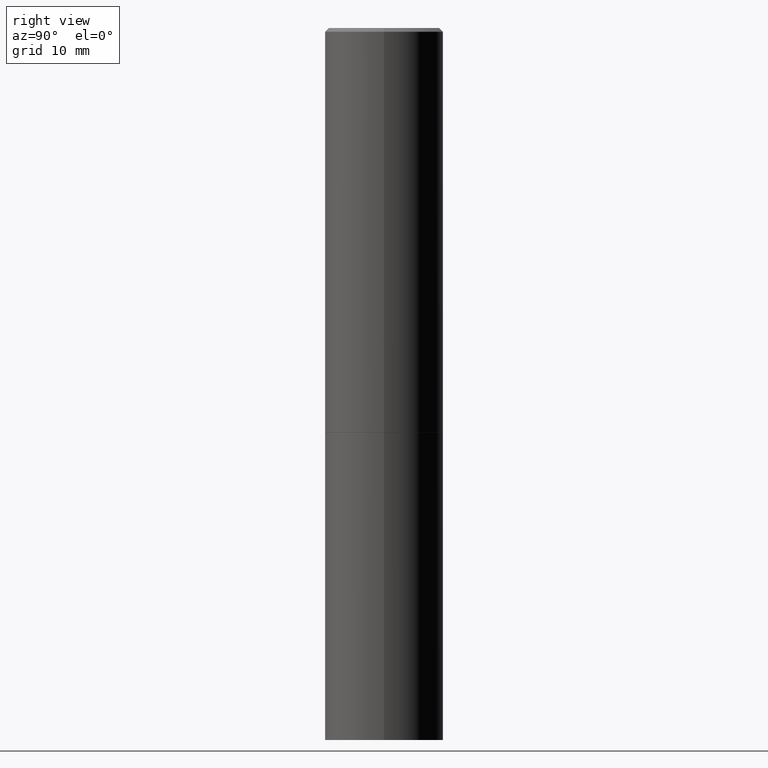
[diagram: clean part render]
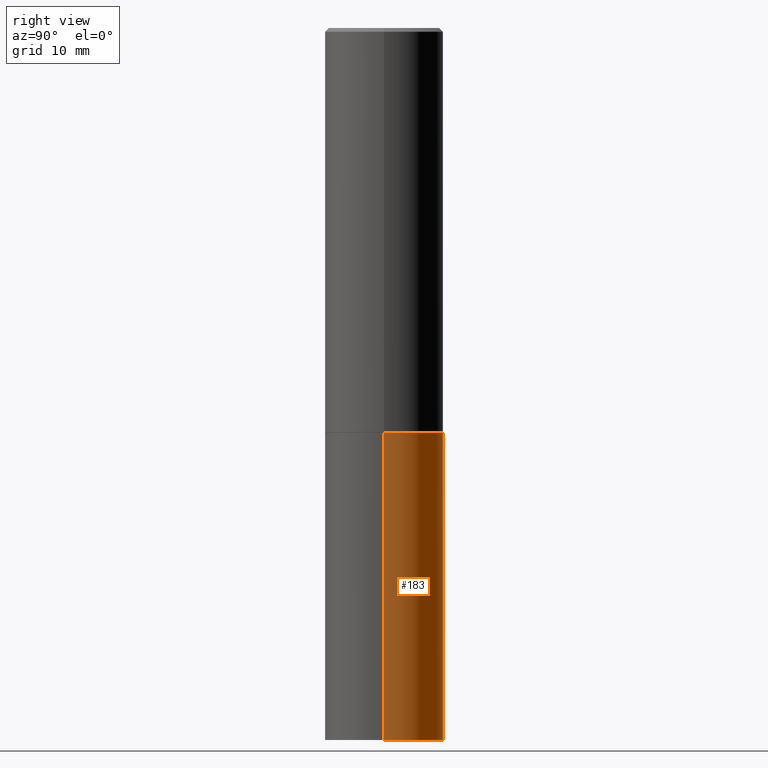
[diagram: same view with one face highlighted and labeled with its STEP entity id]
A machine part, right view. The second image highlights one B-rep face of the part: STEP entity #183.
In plain terms, the highlighted cylindrical surface (partial cylindrical patch) has radius 7.9375 mm, axis along (-0, 0, 1).
Its self-contained STEP definition (entity closure, byte-faithful):
#3 = CIRCLE ( 'NONE', #96, 0.3125000000000000000 ) ;
#6 = ORIENTED_EDGE ( 'NONE', *, *, #288, .F. ) ;
#13 = CARTESIAN_POINT ( 'NONE',  ( 0.3125000000000000000, -9.619031088512858584E-15, -2.129999999999999893 ) ) ;
#36 = EDGE_CURVE ( 'NONE', #205, #356, #92, .T. ) ;
#38 = AXIS2_PLACEMENT_3D ( 'NONE', #237, #105, #351 ) ;
#63 = DIRECTION ( 'NONE',  ( -2.445468806185136597E-29, 3.491481338843145583E-15, 1.000000000000000000 ) ) ;
#84 = CARTESIAN_POINT ( 'NONE',  ( -0.3125000000000000000, -8.044509086948536533E-15, -2.129999999999999893 ) ) ;
#85 = CYLINDRICAL_SURFACE ( 'NONE', #359, 0.3125000000000000000 ) ;
#92 = CIRCLE ( 'NONE', #38, 0.3125000000000000000 ) ;
#96 = AXIS2_PLACEMENT_3D ( 'NONE', #166, #334, #198 ) ;
#105 = DIRECTION ( 'NONE',  ( -2.445468806185136597E-29, 3.491481338843145583E-15, 1.000000000000000000 ) ) ;
#118 = FACE_OUTER_BOUND ( 'NONE', #322, .T. ) ;
#131 = VECTOR ( 'NONE', #257, 39.37007874015748143 ) ;
#136 = ORIENTED_EDGE ( 'NONE', *, *, #254, .F. ) ;
#138 = CARTESIAN_POINT ( 'NONE',  ( 0.3125000000000000000, -1.527523085743875734E-14, -3.750000000000000000 ) ) ;
#142 = VERTEX_POINT ( 'NONE', #13 ) ;
#148 = CARTESIAN_POINT ( 'NONE',  ( 0.000000000000000000, 0.000000000000000000, 0.000000000000000000 ) ) ;
#149 = CARTESIAN_POINT ( 'NONE',  ( -0.3125000000000000000, -8.044509086948536533E-15, -3.750000000000000000 ) ) ;
#160 = ORIENTED_EDGE ( 'NONE', *, *, #349, .T. ) ;
#166 = CARTESIAN_POINT ( 'NONE',  ( 5.208848557174341041E-29, -7.436855251735900237E-15, -2.129999999999999893 ) ) ;
#177 = DIRECTION ( 'NONE',  ( 1.000000000000000000, -6.982962677686266711E-15, 4.876176775795936353E-29 ) ) ;
#183 = ADVANCED_FACE ( 'NONE', ( #118 ), #85, .T. ) ;
#198 = DIRECTION ( 'NONE',  ( 1.000000000000000000, -6.982962677686265133E-15, 0.000000000000000000 ) ) ;
#203 = DIRECTION ( 'NONE',  ( -2.445468806185136877E-29, 3.491481338843145188E-15, 1.000000000000000000 ) ) ;
#205 = VERTEX_POINT ( 'NONE', #138 ) ;
#237 = CARTESIAN_POINT ( 'NONE',  ( 9.170508023194262238E-29, -1.309305502066179741E-14, -3.750000000000000000 ) ) ;
#254 = EDGE_CURVE ( 'NONE', #142, #261, #3, .T. ) ;
#257 = DIRECTION ( 'NONE',  ( -2.445468806185136877E-29, 3.491481338843145188E-15, 1.000000000000000000 ) ) ;
#261 = VERTEX_POINT ( 'NONE', #84 ) ;
#282 = CARTESIAN_POINT ( 'NONE',  ( 0.3125000000000000000, -2.182175836776958347E-15, 1.523805242436230075E-29 ) ) ;
#287 = CARTESIAN_POINT ( 'NONE',  ( -0.3125000000000000000, 2.220446049250313081E-15, -1.537167215704658232E-29 ) ) ;
#288 = EDGE_CURVE ( 'NONE', #205, #142, #308, .T. ) ;
#302 = ORIENTED_EDGE ( 'NONE', *, *, #36, .T. ) ;
#304 = VECTOR ( 'NONE', #203, 39.37007874015748143 ) ;
#308 = LINE ( 'NONE', #282, #304 ) ;
#322 = EDGE_LOOP ( 'NONE', ( #302, #160, #136, #6 ) ) ;
#334 = DIRECTION ( 'NONE',  ( -2.445468806185136597E-29, 3.491481338843145583E-15, 1.000000000000000000 ) ) ;
#344 = LINE ( 'NONE', #287, #131 ) ;
#349 = EDGE_CURVE ( 'NONE', #356, #261, #344, .T. ) ;
#351 = DIRECTION ( 'NONE',  ( 1.000000000000000000, -6.982962677686269077E-15, 0.000000000000000000 ) ) ;
#356 = VERTEX_POINT ( 'NONE', #149 ) ;
#359 = AXIS2_PLACEMENT_3D ( 'NONE', #148, #63, #177 ) ;